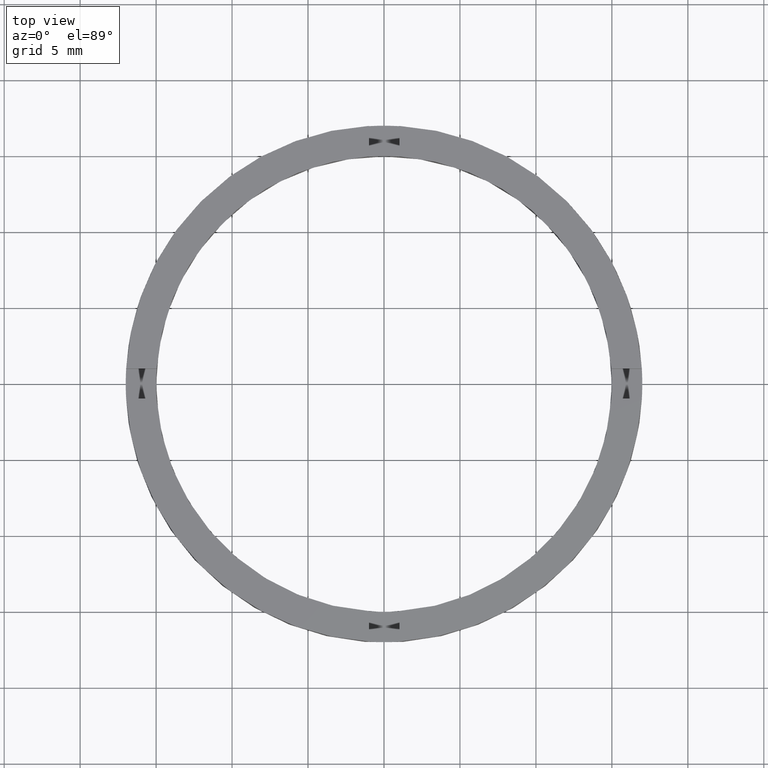
[diagram: clean part render]
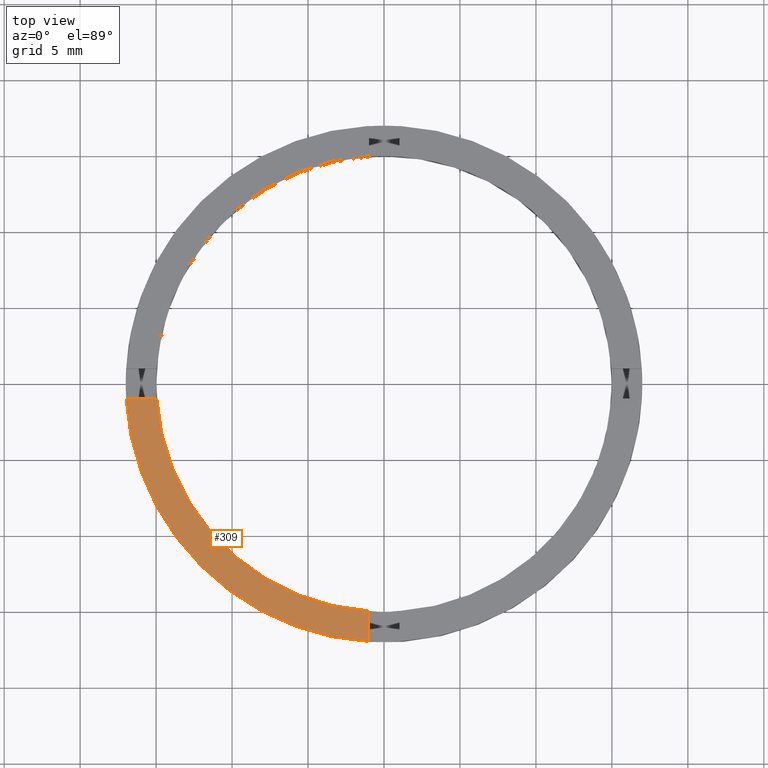
[diagram: same view with one face highlighted and labeled with its STEP entity id]
A machine part, top view. The second image highlights one B-rep face of the part: STEP entity #309.
In plain terms, the highlighted planar face has unit normal (0, 0, 1).
Its self-contained STEP definition (entity closure, byte-faithful):
#3 = DIRECTION ( 'NONE',  ( 1.000000000000000000, 0.000000000000000000, 0.000000000000000000 ) ) ;
#12 = DIRECTION ( 'NONE',  ( 1.000000000000000000, 0.000000000000000000, -0.000000000000000000 ) ) ;
#21 = EDGE_CURVE ( 'NONE', #348, #373, #757, .T. ) ;
#40 = AXIS2_PLACEMENT_3D ( 'NONE', #664, #733, #3 ) ;
#47 = CARTESIAN_POINT ( 'NONE',  ( -7.000000000000186517, -1.000000000000021982, 2.500000000000000000 ) ) ;
#72 = EDGE_CURVE ( 'NONE', #624, #268, #706, .T. ) ;
#137 = VECTOR ( 'NONE', #154, 1000.000000000000000 ) ;
#154 = DIRECTION ( 'NONE',  ( 1.000000000000000000, 1.734723475976807341E-16, -0.000000000000000000 ) ) ;
#175 = VECTOR ( 'NONE', #544, 1000.000000000000000 ) ;
#178 = LINE ( 'NONE', #190, #175 ) ;
#190 = CARTESIAN_POINT ( 'NONE',  ( -1.000000000000163647, -7.000000000000181188, 2.500000000000000000 ) ) ;
#221 = DIRECTION ( 'NONE',  ( 0.000000000000000000, 0.000000000000000000, 1.000000000000000000 ) ) ;
#268 = VERTEX_POINT ( 'NONE', #661 ) ;
#279 = ORIENTED_EDGE ( 'NONE', *, *, #451, .F. ) ;
#309 = ADVANCED_FACE ( 'NONE', ( #460 ), #462, .T. ) ;
#315 = CARTESIAN_POINT ( 'NONE',  ( 0.000000000000000000, 0.000000000000000000, 2.500000000000000000 ) ) ;
#324 = CARTESIAN_POINT ( 'NONE',  ( 0.000000000000000000, 0.000000000000000000, 2.500000000000000000 ) ) ;
#348 = VERTEX_POINT ( 'NONE', #619 ) ;
#373 = VERTEX_POINT ( 'NONE', #400 ) ;
#388 = DIRECTION ( 'NONE',  ( 1.000000000000000000, 0.000000000000000000, 0.000000000000000000 ) ) ;
#400 = CARTESIAN_POINT ( 'NONE',  ( -1.000000000000162759, -14.96662954709575466, 2.500000000000000000 ) ) ;
#451 = EDGE_CURVE ( 'NONE', #373, #268, #178, .T. ) ;
#460 = FACE_OUTER_BOUND ( 'NONE', #570, .T. ) ;
#462 = PLANE ( 'NONE',  #577 ) ;
#498 = ORIENTED_EDGE ( 'NONE', *, *, #72, .T. ) ;
#544 = DIRECTION ( 'NONE',  ( 1.301042606982605321E-16, -1.000000000000000000, 0.000000000000000000 ) ) ;
#565 = DIRECTION ( 'NONE',  ( 0.000000000000000000, 0.000000000000000000, 1.000000000000000000 ) ) ;
#570 = EDGE_LOOP ( 'NONE', ( #279, #620, #657, #498 ) ) ;
#577 = AXIS2_PLACEMENT_3D ( 'NONE', #315, #565, #12 ) ;
#619 = CARTESIAN_POINT ( 'NONE',  ( -14.96662954709576354, -1.000000000000023315, 2.500000000000000000 ) ) ;
#620 = ORIENTED_EDGE ( 'NONE', *, *, #21, .F. ) ;
#624 = VERTEX_POINT ( 'NONE', #764 ) ;
#657 = ORIENTED_EDGE ( 'NONE', *, *, #730, .F. ) ;
#661 = CARTESIAN_POINT ( 'NONE',  ( -1.000000000000162537, -16.97056274847713198, 2.500000000000000000 ) ) ;
#664 = CARTESIAN_POINT ( 'NONE',  ( 0.000000000000000000, 0.000000000000000000, 2.500000000000000000 ) ) ;
#689 = LINE ( 'NONE', #47, #137 ) ;
#706 = CIRCLE ( 'NONE', #40, 17.00000000000000000 ) ;
#730 = EDGE_CURVE ( 'NONE', #624, #348, #689, .T. ) ;
#733 = DIRECTION ( 'NONE',  ( 0.000000000000000000, 0.000000000000000000, 1.000000000000000000 ) ) ;
#757 = CIRCLE ( 'NONE', #762, 15.00000000000000000 ) ;
#762 = AXIS2_PLACEMENT_3D ( 'NONE', #324, #221, #388 ) ;
#764 = CARTESIAN_POINT ( 'NONE',  ( -16.97056274847713908, -1.000000000000023759, 2.500000000000000000 ) ) ;